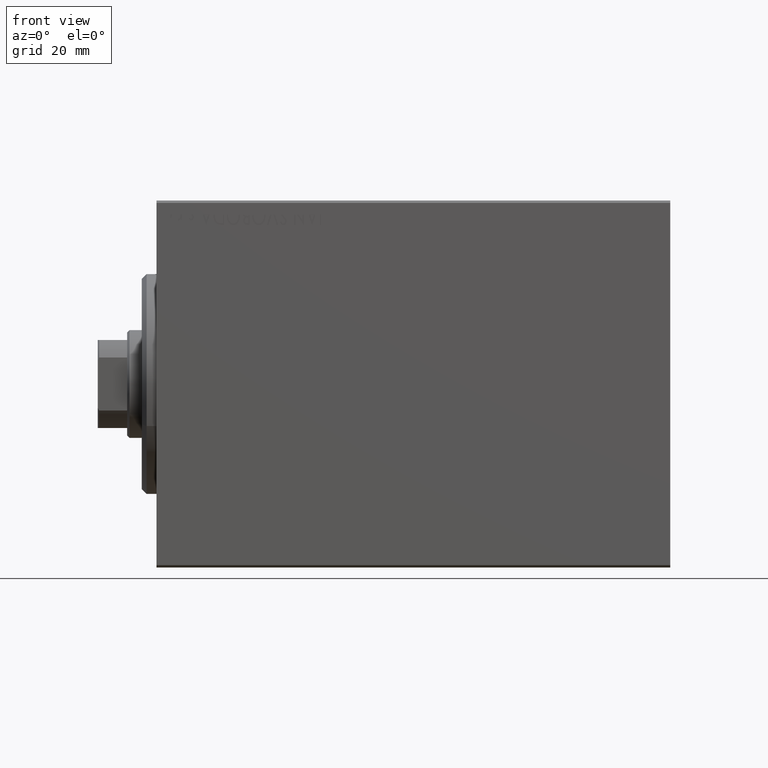
[diagram: clean part render]
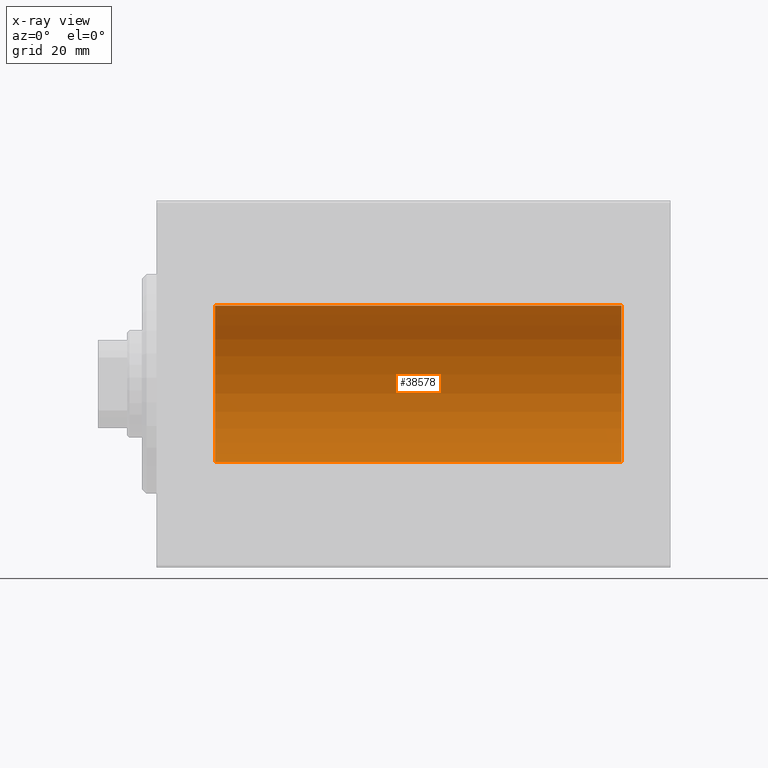
[diagram: x-ray — body ghosted, one internal face saturated and labeled with its STEP entity id]
A machine part, front view, then the same camera in x-ray: the body is ghosted and one INTERNAL B-rep face — a face not visible from any outside direction — is saturated and labeled: STEP entity #38578.
In plain terms, the highlighted cylindrical surface (partial cylindrical patch) has radius 16 mm, axis along (-1, -0, -0).
Its self-contained STEP definition (entity closure, byte-faithful):
#1145 = DIRECTION ( 'NONE',  ( 0.000000000000000000, 0.000000000000000000, 1.000000000000000000 ) ) ;
#1799 = DIRECTION ( 'NONE',  ( -1.000000000000000000, 0.000000000000000000, 0.000000000000000000 ) ) ;
#2009 = CARTESIAN_POINT ( 'NONE',  ( 95.00000000000000000, 0.000000000000000000, 0.000000000000000000 ) ) ;
#2121 = ORIENTED_EDGE ( 'NONE', *, *, #11363, .F. ) ;
#2726 = VERTEX_POINT ( 'NONE', #7942 ) ;
#3767 = CARTESIAN_POINT ( 'NONE',  ( 95.00000000000000000, 1.959434878635765131E-15, -16.00000000000000000 ) ) ;
#5028 = LINE ( 'NONE', #22429, #42350 ) ;
#5057 = EDGE_LOOP ( 'NONE', ( #2121, #22862, #42735, #41678 ) ) ;
#5599 = VERTEX_POINT ( 'NONE', #31750 ) ;
#6407 = DIRECTION ( 'NONE',  ( 0.000000000000000000, 0.000000000000000000, 1.000000000000000000 ) ) ;
#6754 = VERTEX_POINT ( 'NONE', #21400 ) ;
#7942 = CARTESIAN_POINT ( 'NONE',  ( 11.99999999999999645, 1.959434878635765131E-15, -16.00000000000000000 ) ) ;
#8723 = AXIS2_PLACEMENT_3D ( 'NONE', #12794, #10363, #6407 ) ;
#9540 = CYLINDRICAL_SURFACE ( 'NONE', #18542, 16.00000000000000000 ) ;
#10363 = DIRECTION ( 'NONE',  ( -1.000000000000000000, 0.000000000000000000, 0.000000000000000000 ) ) ;
#10540 = CARTESIAN_POINT ( 'NONE',  ( 95.00000000000000000, 0.000000000000000000, 16.00000000000000000 ) ) ;
#11363 = EDGE_CURVE ( 'NONE', #6754, #2726, #20521, .T. ) ;
#12794 = CARTESIAN_POINT ( 'NONE',  ( 11.99999999999999645, 0.000000000000000000, 0.000000000000000000 ) ) ;
#13019 = DIRECTION ( 'NONE',  ( -1.000000000000000000, -0.000000000000000000, -0.000000000000000000 ) ) ;
#18542 = AXIS2_PLACEMENT_3D ( 'NONE', #36425, #33120, #21204 ) ;
#18907 = DIRECTION ( 'NONE',  ( -1.000000000000000000, -0.000000000000000000, -0.000000000000000000 ) ) ;
#20521 = LINE ( 'NONE', #3767, #22125 ) ;
#21204 = DIRECTION ( 'NONE',  ( 0.000000000000000000, 0.000000000000000000, 1.000000000000000000 ) ) ;
#21400 = CARTESIAN_POINT ( 'NONE',  ( 95.00000000000000000, 1.959434878635765131E-15, -16.00000000000000000 ) ) ;
#22109 = AXIS2_PLACEMENT_3D ( 'NONE', #2009, #1799, #1145 ) ;
#22125 = VECTOR ( 'NONE', #13019, 1000.000000000000000 ) ;
#22429 = CARTESIAN_POINT ( 'NONE',  ( 95.00000000000000000, 0.000000000000000000, 16.00000000000000000 ) ) ;
#22862 = ORIENTED_EDGE ( 'NONE', *, *, #35333, .F. ) ;
#24641 = VERTEX_POINT ( 'NONE', #10540 ) ;
#30089 = EDGE_CURVE ( 'NONE', #24641, #5599, #5028, .T. ) ;
#31750 = CARTESIAN_POINT ( 'NONE',  ( 11.99999999999999645, 0.000000000000000000, 16.00000000000000000 ) ) ;
#33120 = DIRECTION ( 'NONE',  ( -1.000000000000000000, -0.000000000000000000, -0.000000000000000000 ) ) ;
#35333 = EDGE_CURVE ( 'NONE', #24641, #6754, #37590, .T. ) ;
#36164 = EDGE_CURVE ( 'NONE', #5599, #2726, #40384, .T. ) ;
#36425 = CARTESIAN_POINT ( 'NONE',  ( 95.00000000000000000, 0.000000000000000000, 0.000000000000000000 ) ) ;
#37590 = CIRCLE ( 'NONE', #22109, 16.00000000000000000 ) ;
#38578 = ADVANCED_FACE ( 'NONE', ( #39735 ), #9540, .F. ) ;
#39735 = FACE_OUTER_BOUND ( 'NONE', #5057, .T. ) ;
#40384 = CIRCLE ( 'NONE', #8723, 16.00000000000000000 ) ;
#41678 = ORIENTED_EDGE ( 'NONE', *, *, #36164, .T. ) ;
#42350 = VECTOR ( 'NONE', #18907, 1000.000000000000000 ) ;
#42735 = ORIENTED_EDGE ( 'NONE', *, *, #30089, .T. ) ;